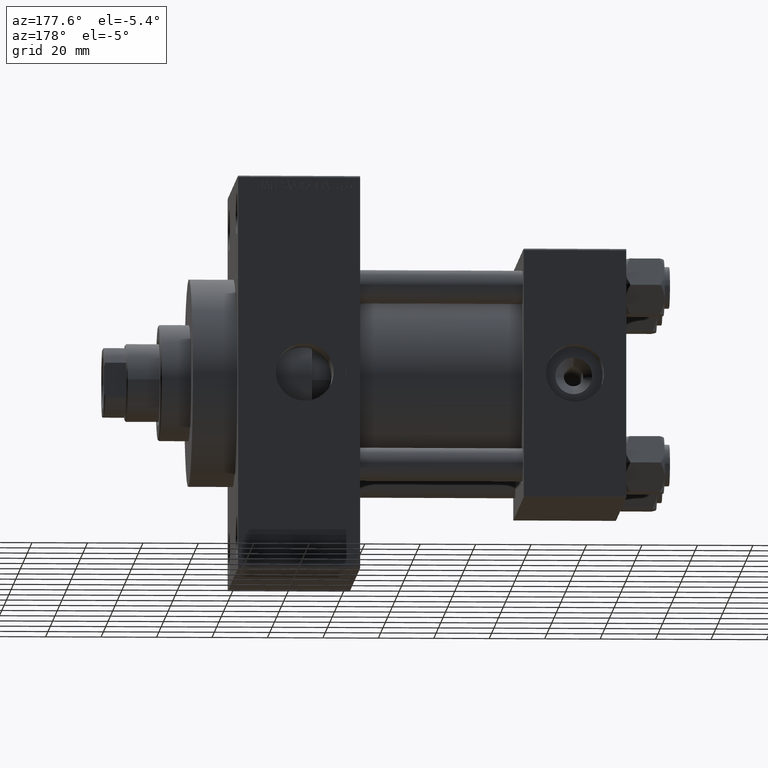
[diagram: clean part render]
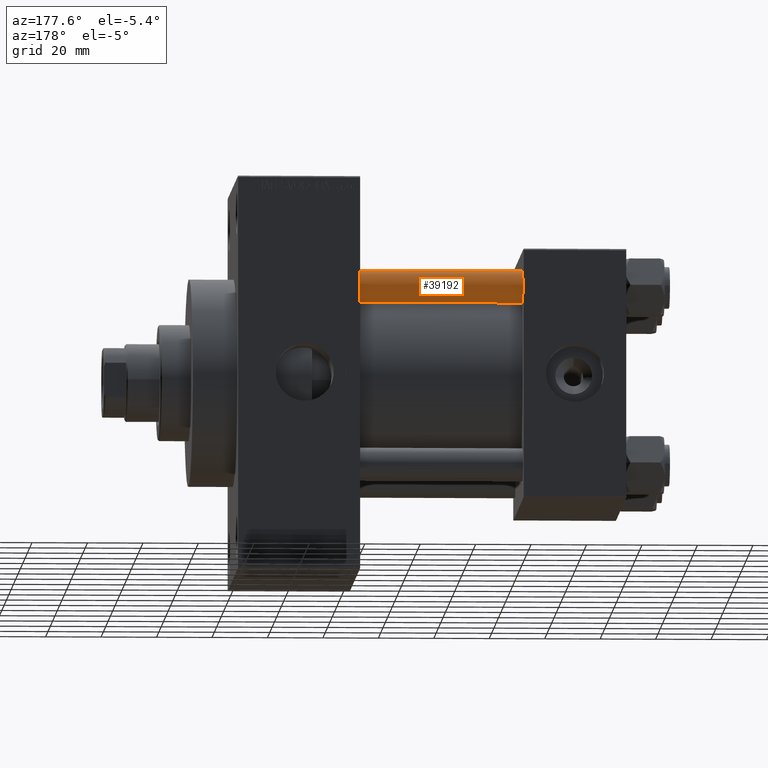
[diagram: same view with one face highlighted and labeled with its STEP entity id]
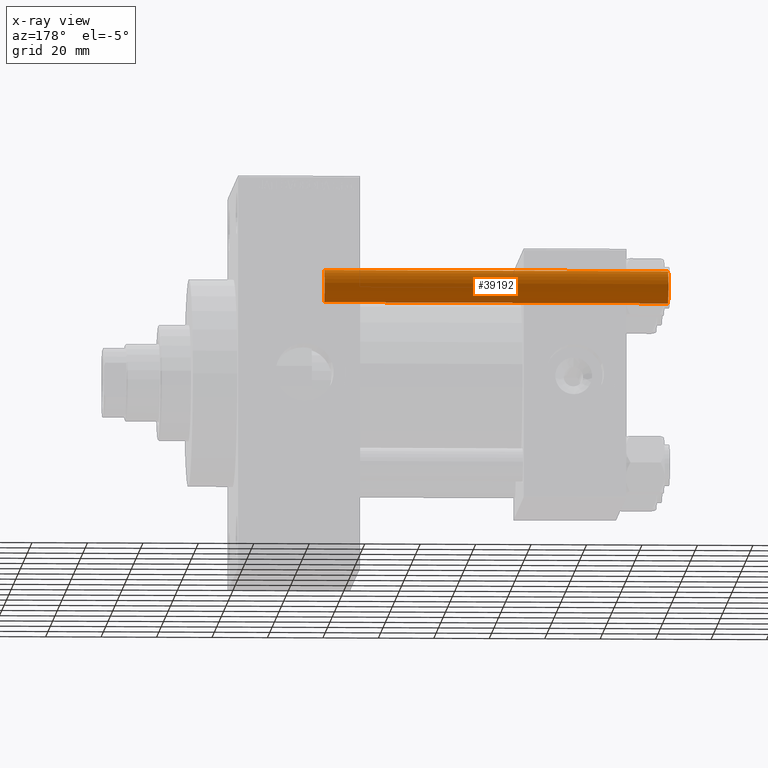
[diagram: x-ray of the same camera — body ghosted, the highlighted face saturated]
A machine part, auxiliary view. The second image highlights one B-rep face of the part: STEP entity #39192.
The next image is the same camera in x-ray: the body ghosted, the highlighted face saturated — about 0% of this face is hidden behind the body in this view.
In plain terms, the highlighted cylindrical surface (edge-blend (fillet) strip) has radius 6 mm, axis along (-1, -0, 0).
Its self-contained STEP definition (entity closure, byte-faithful):
#953 = VECTOR ( 'NONE', #31666, 1000.000000000000000 ) ;
#1771 = VERTEX_POINT ( 'NONE', #45346 ) ;
#2499 = LINE ( 'NONE', #17080, #953 ) ;
#2872 = DIRECTION ( 'NONE',  ( 1.000000000000000000, 0.000000000000000000, 0.000000000000000000 ) ) ;
#5693 = ORIENTED_EDGE ( 'NONE', *, *, #21085, .T. ) ;
#6131 = CIRCLE ( 'NONE', #26009, 6.000000000000000888 ) ;
#9362 = DIRECTION ( 'NONE',  ( 1.000000000000000000, 0.000000000000000000, 0.000000000000000000 ) ) ;
#11933 = AXIS2_PLACEMENT_3D ( 'NONE', #14793, #26251, #43446 ) ;
#12481 = CARTESIAN_POINT ( 'NONE',  ( 0.000000000000000000, 0.000000000000000000, 0.4999999999999865663 ) ) ;
#14363 = LINE ( 'NONE', #43491, #27419 ) ;
#14793 = CARTESIAN_POINT ( 'NONE',  ( 0.000000000000000000, 0.000000000000000000, 125.0000000000000000 ) ) ;
#15694 = ORIENTED_EDGE ( 'NONE', *, *, #19504, .F. ) ;
#15718 = CIRCLE ( 'NONE', #35553, 6.000000000000000888 ) ;
#17080 = CARTESIAN_POINT ( 'NONE',  ( 6.000000000000000888, 7.347880794884120722E-16, 125.0000000000000000 ) ) ;
#18607 = CYLINDRICAL_SURFACE ( 'NONE', #11933, 6.000000000000000888 ) ;
#19504 = EDGE_CURVE ( 'NONE', #31370, #28835, #14363, .T. ) ;
#21085 = EDGE_CURVE ( 'NONE', #31370, #26746, #6131, .T. ) ;
#21506 = EDGE_LOOP ( 'NONE', ( #5693, #24815, #41094, #15694 ) ) ;
#23237 = DIRECTION ( 'NONE',  ( -0.000000000000000000, -0.000000000000000000, 1.000000000000000000 ) ) ;
#24815 = ORIENTED_EDGE ( 'NONE', *, *, #29824, .T. ) ;
#26009 = AXIS2_PLACEMENT_3D ( 'NONE', #36579, #43483, #2872 ) ;
#26251 = DIRECTION ( 'NONE',  ( -0.000000000000000000, -0.000000000000000000, -1.000000000000000000 ) ) ;
#26746 = VERTEX_POINT ( 'NONE', #38114 ) ;
#27419 = VECTOR ( 'NONE', #43969, 1000.000000000000000 ) ;
#28439 = CARTESIAN_POINT ( 'NONE',  ( -6.000000000000000888, 0.000000000000000000, 124.5000000000000000 ) ) ;
#28835 = VERTEX_POINT ( 'NONE', #41007 ) ;
#28889 = FACE_OUTER_BOUND ( 'NONE', #21506, .T. ) ;
#29824 = EDGE_CURVE ( 'NONE', #26746, #1771, #2499, .T. ) ;
#31370 = VERTEX_POINT ( 'NONE', #28439 ) ;
#31666 = DIRECTION ( 'NONE',  ( -0.000000000000000000, -0.000000000000000000, -1.000000000000000000 ) ) ;
#35553 = AXIS2_PLACEMENT_3D ( 'NONE', #12481, #23237, #9362 ) ;
#36579 = CARTESIAN_POINT ( 'NONE',  ( 0.000000000000000000, 0.000000000000000000, 124.5000000000000000 ) ) ;
#38114 = CARTESIAN_POINT ( 'NONE',  ( 6.000000000000000888, 7.347880794884120722E-16, 124.5000000000000000 ) ) ;
#39192 = ADVANCED_FACE ( 'NONE', ( #28889 ), #18607, .T. ) ;
#41007 = CARTESIAN_POINT ( 'NONE',  ( -6.000000000000000888, 0.000000000000000000, 0.4999999999999865663 ) ) ;
#41094 = ORIENTED_EDGE ( 'NONE', *, *, #42626, .T. ) ;
#42626 = EDGE_CURVE ( 'NONE', #1771, #28835, #15718, .T. ) ;
#43446 = DIRECTION ( 'NONE',  ( -1.000000000000000000, 0.000000000000000000, 0.000000000000000000 ) ) ;
#43483 = DIRECTION ( 'NONE',  ( 0.000000000000000000, 0.000000000000000000, -1.000000000000000000 ) ) ;
#43491 = CARTESIAN_POINT ( 'NONE',  ( -6.000000000000000888, 0.000000000000000000, 125.0000000000000000 ) ) ;
#43969 = DIRECTION ( 'NONE',  ( -0.000000000000000000, -0.000000000000000000, -1.000000000000000000 ) ) ;
#45346 = CARTESIAN_POINT ( 'NONE',  ( 6.000000000000000888, 7.347880794884120722E-16, 0.4999999999999865663 ) ) ;